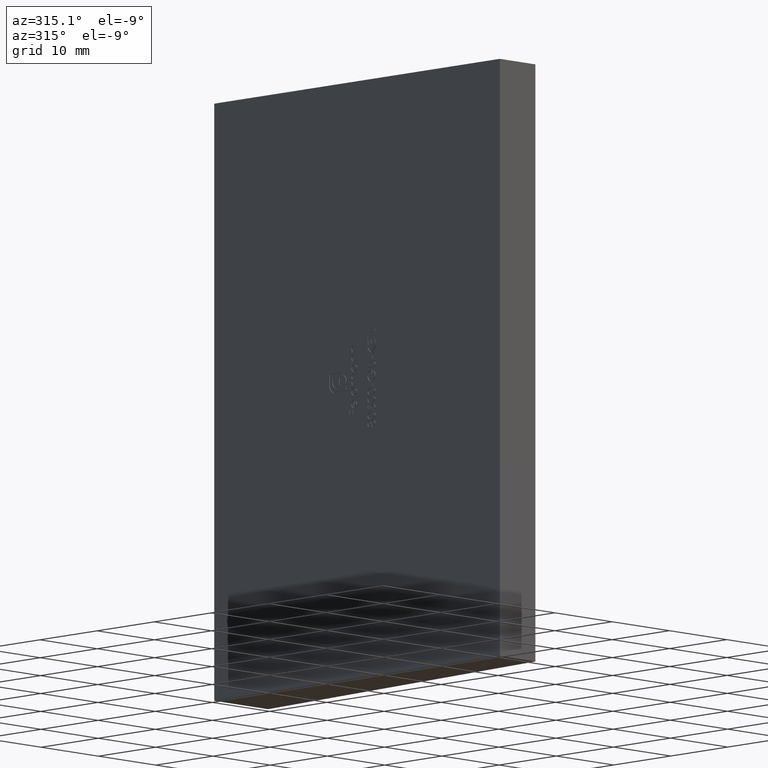
[diagram: clean part render]
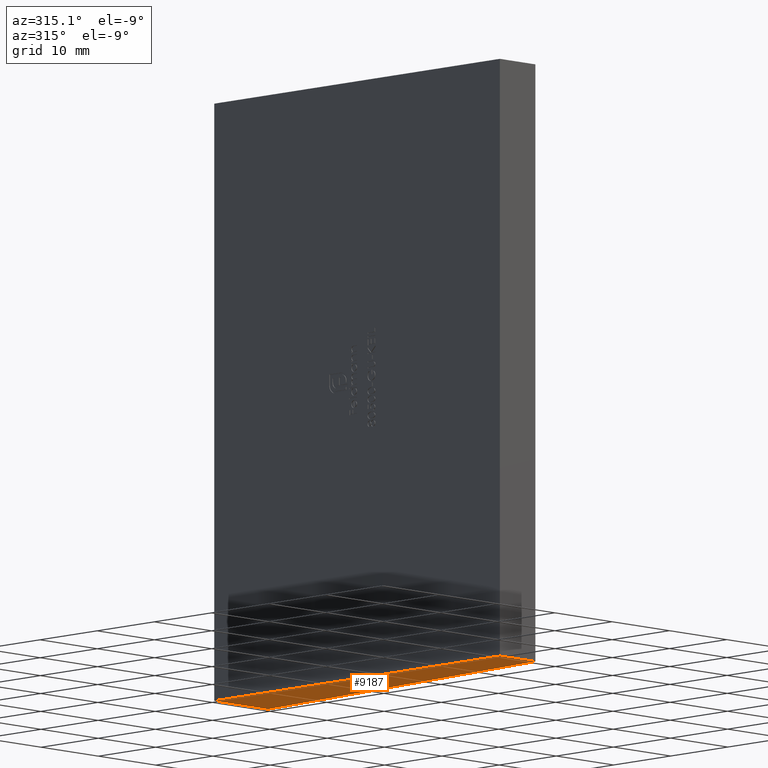
[diagram: same view with one face highlighted and labeled with its STEP entity id]
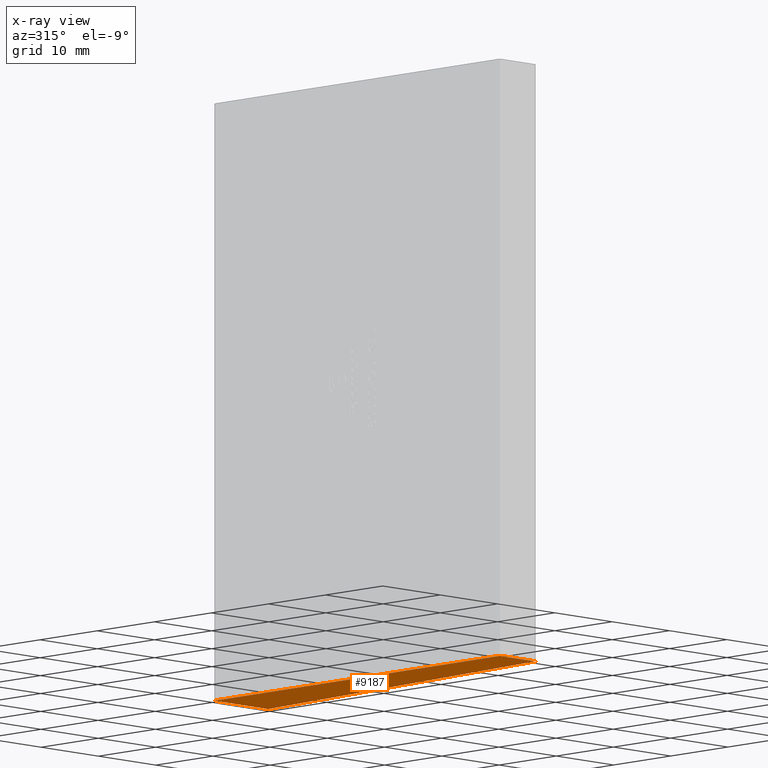
[diagram: x-ray of the same camera — body ghosted, the highlighted face saturated]
A machine part, auxiliary view. The second image highlights one B-rep face of the part: STEP entity #9187.
The next image is the same camera in x-ray: the body ghosted, the highlighted face saturated — about 0% of this face is hidden behind the body in this view.
In plain terms, the highlighted planar face has unit normal (0, 0, -1).
Its self-contained STEP definition (entity closure, byte-faithful):
#299 = LINE ( 'NONE', #13441, #9947 ) ;
#721 = CARTESIAN_POINT ( 'NONE',  ( 1.500000000000005773, -25.00000000000000000, -37.35000000000000142 ) ) ;
#947 = LINE ( 'NONE', #6316, #3768 ) ;
#994 = LINE ( 'NONE', #9310, #3213 ) ;
#1998 = DIRECTION ( 'NONE',  ( 0.000000000000000000, 0.000000000000000000, -1.000000000000000000 ) ) ;
#2101 = VERTEX_POINT ( 'NONE', #13896 ) ;
#2451 = DIRECTION ( 'NONE',  ( 0.06386932928370206430, 0.9979582700578466525, -0.000000000000000000 ) ) ;
#2598 = VERTEX_POINT ( 'NONE', #721 ) ;
#3213 = VECTOR ( 'NONE', #11830, 1000.000000000000000 ) ;
#3768 = VECTOR ( 'NONE', #2451, 1000.000000000000114 ) ;
#5687 = EDGE_CURVE ( 'NONE', #2101, #2598, #994, .T. ) ;
#5787 = ORIENTED_EDGE ( 'NONE', *, *, #8390, .F. ) ;
#6001 = EDGE_CURVE ( 'NONE', #12653, #10207, #8250, .T. ) ;
#6316 = CARTESIAN_POINT ( 'NONE',  ( 4.699999999999999289, 25.00000000000000000, -37.35000000000000142 ) ) ;
#6710 = CARTESIAN_POINT ( 'NONE',  ( -4.700000000000002842, 25.00000000000000000, -37.35000000000000142 ) ) ;
#6754 = DIRECTION ( 'NONE',  ( -1.000000000000000000, -0.000000000000000000, -0.000000000000000000 ) ) ;
#8250 = LINE ( 'NONE', #10710, #10869 ) ;
#8390 = EDGE_CURVE ( 'NONE', #2598, #12653, #947, .T. ) ;
#8435 = EDGE_LOOP ( 'NONE', ( #13540, #11958, #15492, #5787 ) ) ;
#9187 = ADVANCED_FACE ( 'NONE', ( #12001 ), #9711, .T. ) ;
#9310 = CARTESIAN_POINT ( 'NONE',  ( 1.500000000000005773, -25.00000000000000000, -37.35000000000000142 ) ) ;
#9711 = PLANE ( 'NONE',  #12984 ) ;
#9947 = VECTOR ( 'NONE', #12092, 1000.000000000000000 ) ;
#10207 = VERTEX_POINT ( 'NONE', #6710 ) ;
#10710 = CARTESIAN_POINT ( 'NONE',  ( -4.700000000000002842, 25.00000000000000000, -37.35000000000000142 ) ) ;
#10869 = VECTOR ( 'NONE', #6754, 1000.000000000000000 ) ;
#11009 = DIRECTION ( 'NONE',  ( -1.000000000000000000, 0.000000000000000000, -0.000000000000000000 ) ) ;
#11830 = DIRECTION ( 'NONE',  ( 1.000000000000000000, -0.000000000000000000, -0.000000000000000000 ) ) ;
#11958 = ORIENTED_EDGE ( 'NONE', *, *, #12581, .F. ) ;
#12001 = FACE_OUTER_BOUND ( 'NONE', #8435, .T. ) ;
#12092 = DIRECTION ( 'NONE',  ( 1.734723475976807094E-16, -1.000000000000000000, -0.000000000000000000 ) ) ;
#12581 = EDGE_CURVE ( 'NONE', #10207, #2101, #299, .T. ) ;
#12653 = VERTEX_POINT ( 'NONE', #16322 ) ;
#12984 = AXIS2_PLACEMENT_3D ( 'NONE', #13528, #1998, #11009 ) ;
#13441 = CARTESIAN_POINT ( 'NONE',  ( -4.699999999999993960, -25.00000000000000000, -37.35000000000000142 ) ) ;
#13528 = CARTESIAN_POINT ( 'NONE',  ( 0.000000000000000000, 0.000000000000000000, -37.35000000000000142 ) ) ;
#13540 = ORIENTED_EDGE ( 'NONE', *, *, #5687, .F. ) ;
#13896 = CARTESIAN_POINT ( 'NONE',  ( -4.699999999999993960, -25.00000000000000000, -37.35000000000000142 ) ) ;
#15492 = ORIENTED_EDGE ( 'NONE', *, *, #6001, .F. ) ;
#16322 = CARTESIAN_POINT ( 'NONE',  ( 4.699999999999999289, 25.00000000000000000, -37.35000000000000142 ) ) ;